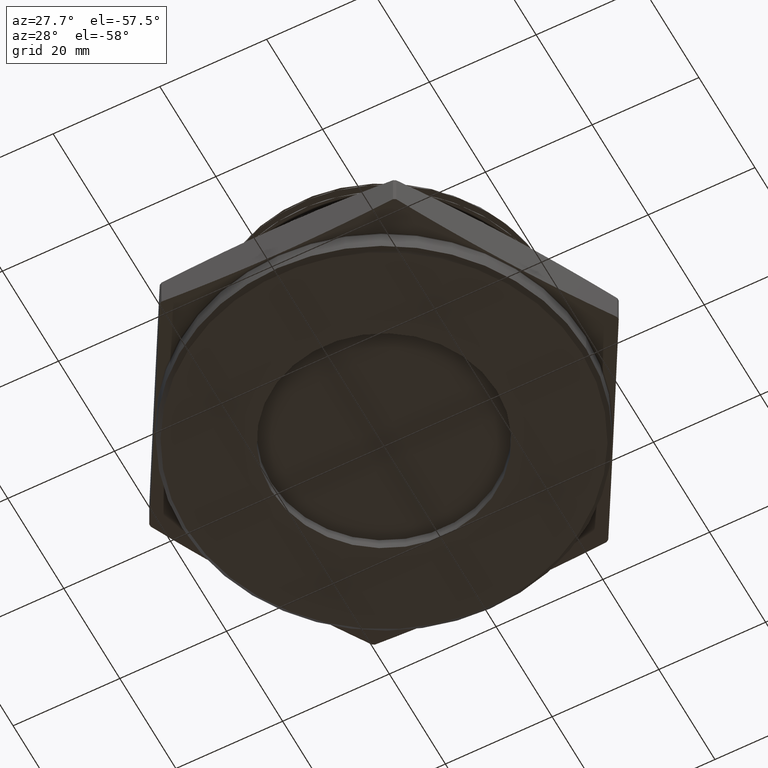
[diagram: clean part render]
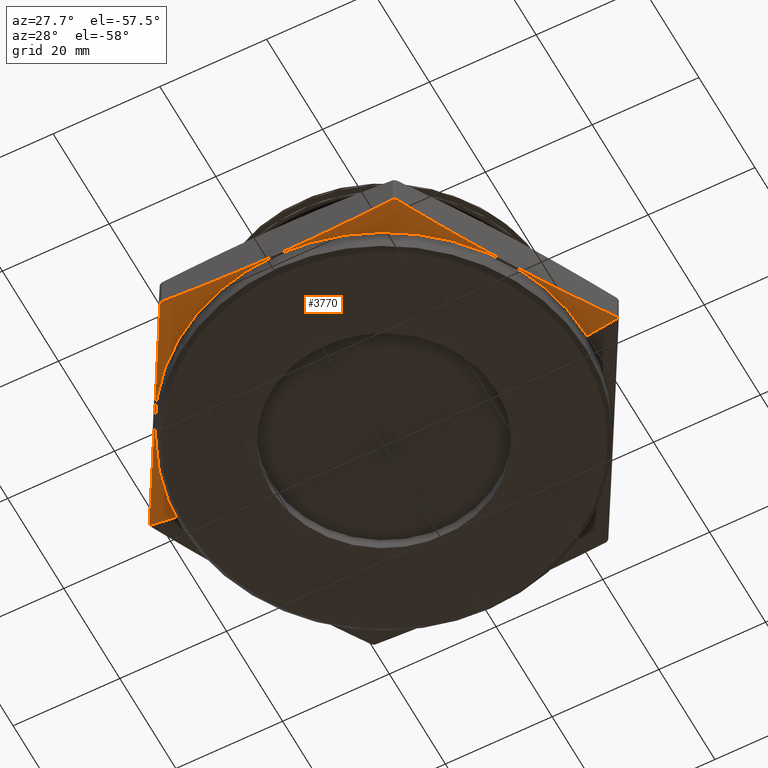
[diagram: same view with one face highlighted and labeled with its STEP entity id]
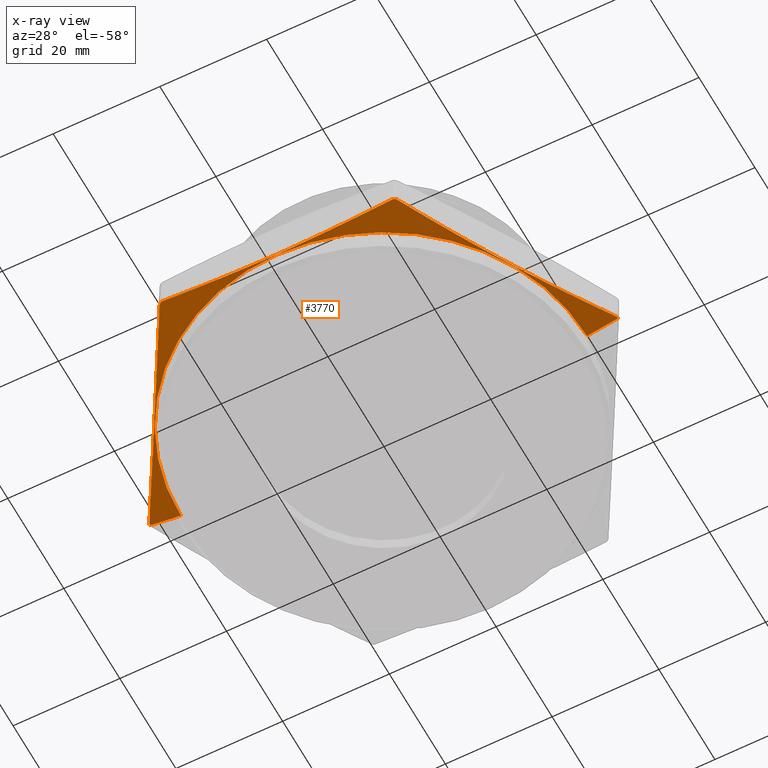
[diagram: x-ray of the same camera — body ghosted, the highlighted face saturated]
A machine part, auxiliary view. The second image highlights one B-rep face of the part: STEP entity #3770.
The next image is the same camera in x-ray: the body ghosted, the highlighted face saturated — about 0% of this face is hidden behind the body in this view.
In plain terms, the highlighted conical surface has half-angle 78 deg.
Its self-contained STEP definition (entity closure, byte-faithful):
#1333 = EDGE_CURVE ( 'NONE', #1615, #1603, #1724, .T. ) ;
#1347 = AXIS2_PLACEMENT_3D ( 'NONE', #7637, #7636, #7635 ) ;
#1393 = AXIS2_PLACEMENT_3D ( 'NONE', #3486, #3487, #3485 ) ;
#1416 = AXIS2_PLACEMENT_3D ( 'NONE', #3557, #3558, #3559 ) ;
#1427 = AXIS2_PLACEMENT_3D ( 'NONE', #2328, #2329, #2330 ) ;
#1429 = AXIS2_PLACEMENT_3D ( 'NONE', #2340, #2341, #2342 ) ;
#1432 = AXIS2_PLACEMENT_3D ( 'NONE', #2359, #2360, #2361 ) ;
#1487 = ORIENTED_EDGE ( 'NONE', *, *, #4038, .F. ) ;
#1488 = ORIENTED_EDGE ( 'NONE', *, *, #1333, .T. ) ;
#1489 = ORIENTED_EDGE ( 'NONE', *, *, #4010, .T. ) ;
#1490 = ORIENTED_EDGE ( 'NONE', *, *, #3978, .T. ) ;
#1491 = ORIENTED_EDGE ( 'NONE', *, *, #3986, .F. ) ;
#1492 = ORIENTED_EDGE ( 'NONE', *, *, #3971, .T. ) ;
#1493 = ORIENTED_EDGE ( 'NONE', *, *, #3987, .F. ) ;
#1494 = ORIENTED_EDGE ( 'NONE', *, *, #3966, .T. ) ;
#1495 = ORIENTED_EDGE ( 'NONE', *, *, #3988, .F. ) ;
#1496 = ORIENTED_EDGE ( 'NONE', *, *, #3898, .T. ) ;
#1518 = VERTEX_POINT ( 'NONE', #7069 ) ;
#1520 = VERTEX_POINT ( 'NONE', #7067 ) ;
#1522 = VERTEX_POINT ( 'NONE', #7066 ) ;
#1523 = VERTEX_POINT ( 'NONE', #7078 ) ;
#1532 = VERTEX_POINT ( 'NONE', #6974 ) ;
#1594 = VERTEX_POINT ( 'NONE', #7073 ) ;
#1596 = VERTEX_POINT ( 'NONE', #7072 ) ;
#1603 = VERTEX_POINT ( 'NONE', #7061 ) ;
#1615 = VERTEX_POINT ( 'NONE', #7046 ) ;
#1621 = VERTEX_POINT ( 'NONE', #7040 ) ;
#1690 = EDGE_LOOP ( 'NONE', ( #1487, #1488, #1489, #1490, #1491, #1492, #1493, #1494, #1495, #1496 ) ) ;
#1724 = CIRCLE ( 'NONE', #1347, 1.497920883091823100 ) ;
#1797 = B_SPLINE_CURVE_WITH_KNOTS ( 'NONE', 3,
 ( #2388, #2387, #2398, #2399, #2400, #2401, #2402, #2403, #2404 ),
 .UNSPECIFIED., .F., .F.,
 ( 4, 2, 1, 2, 4 ),
 ( 1.901761468408008900E-006, 0.01084722133919258100, 0.02169254091691675400, 0.03253786049464092700, 0.04338318007236510000 ),
 .UNSPECIFIED. ) ;
#1798 = B_SPLINE_CURVE_WITH_KNOTS ( 'NONE', 3,
 ( #2397, #2396, #2407, #2408, #2409, #2410, #2411, #2412, #2413, #2414 ),
 .UNSPECIFIED., .F., .F.,
 ( 4, 2, 2, 2, 4 ),
 ( 0.03681968275793052300, 0.04770835706127899600, 0.05859703136462747500, 0.06948570566797594700, 0.08037437997132441900 ),
 .UNSPECIFIED. ) ;
#1799 = B_SPLINE_CURVE_WITH_KNOTS ( 'NONE', 3,
 ( #2406, #2405, #2416, #2417, #2418, #2419, #2420, #2421, #2422 ),
 .UNSPECIFIED., .F., .F.,
 ( 4, 2, 1, 2, 4 ),
 ( 1.901761468371354200E-006, 0.01084722133919253900, 0.02169254091691670900, 0.03253786049464087900, 0.04338318007236504500 ),
 .UNSPECIFIED. ) ;
#2328 = CARTESIAN_POINT ( 'NONE',  ( 6.296788084049135800E-018, 0.0000000000000000000, 0.05017414803627076600 ) ) ;
#2329 = DIRECTION ( 'NONE',  ( -1.254986547952384500E-016, -0.0000000000000000000, -1.000000000000000000 ) ) ;
#2330 = DIRECTION ( 'NONE',  ( -1.000000000000000000, 0.0000000000000000000, 1.236496768050692600E-016 ) ) ;
#2340 = CARTESIAN_POINT ( 'NONE',  ( 6.296788084049135800E-018, 0.0000000000000000000, 0.05017414803627076600 ) ) ;
#2341 = DIRECTION ( 'NONE',  ( -1.254986547952384500E-016, -0.0000000000000000000, -1.000000000000000000 ) ) ;
#2342 = DIRECTION ( 'NONE',  ( -1.000000000000000000, 0.0000000000000000000, 1.236496768050692600E-016 ) ) ;
#2359 = CARTESIAN_POINT ( 'NONE',  ( 6.296788084049135800E-018, 0.0000000000000000000, 0.05017414803627076600 ) ) ;
#2360 = DIRECTION ( 'NONE',  ( -1.254986547952384500E-016, -0.0000000000000000000, -1.000000000000000000 ) ) ;
#2361 = DIRECTION ( 'NONE',  ( -1.000000000000000000, 0.0000000000000000000, 1.236496768050692600E-016 ) ) ;
#2387 = CARTESIAN_POINT ( 'NONE',  ( 0.9432205342290142000, -1.366294111973088000, 0.03520672766472290900 ) ) ;
#2388 = CARTESIAN_POINT ( 'NONE',  ( 0.8720570199394853700, -1.489552934367705000, 0.05017414803627098100 ) ) ;
#2396 = CARTESIAN_POINT ( 'NONE',  ( -0.7117519576831441400, -1.500000000000000200, 0.03521901216228433300 ) ) ;
#2397 = CARTESIAN_POINT ( 'NONE',  ( -0.8539621714743442800, -1.499999999999999600, 0.05017414803627098100 ) ) ;
#2398 = CARTESIAN_POINT ( 'NONE',  ( 1.014384048518542900, -1.243035289578470200, 0.02307374582524318900 ) ) ;
#2399 = CARTESIAN_POINT ( 'NONE',  ( 1.156711077097600300, -0.9965176447892351000, 0.006508769680813815200 ) ) ;
#2400 = CARTESIAN_POINT ( 'NONE',  ( 1.299038105676657800, -0.7499999999999996700, -0.002257638447414727400 ) ) ;
#2401 = CARTESIAN_POINT ( 'NONE',  ( 1.441365134255715000, -0.5034823552107650100, 0.006508769680813745800 ) ) ;
#2402 = CARTESIAN_POINT ( 'NONE',  ( 1.583692162834772200, -0.2569647104215300200, 0.02307374582524308200 ) ) ;
#2403 = CARTESIAN_POINT ( 'NONE',  ( 1.654855677124301000, -0.1337058880269123800, 0.03520672766472282600 ) ) ;
#2404 = CARTESIAN_POINT ( 'NONE',  ( 1.726019191413829900, -0.01044706563229453500, 0.05017414803627055100 ) ) ;
#2405 = CARTESIAN_POINT ( 'NONE',  ( -1.654855677124301000, -0.1337058880269130500, 0.03520672766472325600 ) ) ;
#2406 = CARTESIAN_POINT ( 'NONE',  ( -1.726019191413830100, -0.01044706563229562700, 0.05017414803627098100 ) ) ;
#2407 = CARTESIAN_POINT ( 'NONE',  ( -0.5689969641707457400, -1.499999999999999800, 0.02304618993916582000 ) ) ;
#2408 = CARTESIAN_POINT ( 'NONE',  ( -0.2839118229967513300, -1.500000000000000200, 0.006475060571191032300 ) ) ;
#2409 = CARTESIAN_POINT ( 'NONE',  ( -0.1414571199697156900, -1.499999999999999600, 0.002107483262599360500 ) ) ;
#2410 = CARTESIAN_POINT ( 'NONE',  ( 0.1432555716947810100, -1.499999999999999800, 0.002143762553960344600 ) ) ;
#2411 = CARTESIAN_POINT ( 'NONE',  ( 0.2855135918449003300, -1.499999999999999600, 0.006546214014220487500 ) ) ;
#2412 = CARTESIAN_POINT ( 'NONE',  ( 0.5698554412792498100, -1.499999999999999800, 0.02311823387482017700 ) ) ;
#2413 = CARTESIAN_POINT ( 'NONE',  ( 0.7119403689423424700, -1.499999999999999600, 0.03523882590073779800 ) ) ;
#2414 = CARTESIAN_POINT ( 'NONE',  ( 0.8539621714743447200, -1.499999999999999600, 0.05017414803627065500 ) ) ;
#2416 = CARTESIAN_POINT ( 'NONE',  ( -1.583692162834772900, -0.2569647104215305200, 0.02307374582524356400 ) ) ;
#2417 = CARTESIAN_POINT ( 'NONE',  ( -1.441365134255714800, -0.5034823552107651200, 0.006508769680814197700 ) ) ;
#2418 = CARTESIAN_POINT ( 'NONE',  ( -1.299038105676657100, -0.7500000000000001100, -0.002257638447414314100 ) ) ;
#2419 = CARTESIAN_POINT ( 'NONE',  ( -1.156711077097600300, -0.9965176447892352100, 0.006508769680814157800 ) ) ;
#2420 = CARTESIAN_POINT ( 'NONE',  ( -1.014384048518542700, -1.243035289578470200, 0.02307374582524349800 ) ) ;
#2421 = CARTESIAN_POINT ( 'NONE',  ( -0.9432205342290142000, -1.366294111973087800, 0.03520672766472319300 ) ) ;
#2422 = CARTESIAN_POINT ( 'NONE',  ( -0.8720570199394855900, -1.489552934367704800, 0.05017414803627087700 ) ) ;
#3485 = DIRECTION ( 'NONE',  ( 1.000000000000000000, 0.0000000000000000000, -1.236496768050692600E-016 ) ) ;
#3486 = CARTESIAN_POINT ( 'NONE',  ( 6.296788084049135800E-018, 0.0000000000000000000, 0.05017414803627076600 ) ) ;
#3487 = DIRECTION ( 'NONE',  ( 1.254986547952384500E-016, 0.0000000000000000000, 1.000000000000000000 ) ) ;
#3557 = CARTESIAN_POINT ( 'NONE',  ( 6.296788084049135800E-018, 0.0000000000000000000, 0.05017414803627076600 ) ) ;
#3558 = DIRECTION ( 'NONE',  ( -1.254986547952384500E-016, -0.0000000000000000000, -1.000000000000000000 ) ) ;
#3559 = DIRECTION ( 'NONE',  ( -1.000000000000000000, 0.0000000000000000000, 1.236496768050692600E-016 ) ) ;
#3770 = ADVANCED_FACE ( 'NONE', ( #7705 ), #7712, .T. ) ;
#3898 = EDGE_CURVE ( 'NONE', #1596, #1594, #7741, .T. ) ;
#3966 = EDGE_CURVE ( 'NONE', #1520, #1518, #7793, .T. ) ;
#3971 = EDGE_CURVE ( 'NONE', #1523, #1532, #7800, .T. ) ;
#3978 = EDGE_CURVE ( 'NONE', #1621, #1522, #7811, .T. ) ;
#3986 = EDGE_CURVE ( 'NONE', #1523, #1522, #1797, .T. ) ;
#3987 = EDGE_CURVE ( 'NONE', #1520, #1532, #1798, .T. ) ;
#3988 = EDGE_CURVE ( 'NONE', #1596, #1518, #1799, .T. ) ;
#4010 = EDGE_CURVE ( 'NONE', #1603, #1621, #7847, .T. ) ;
#4038 = EDGE_CURVE ( 'NONE', #1615, #1594, #7878, .T. ) ;
#6974 = CARTESIAN_POINT ( 'NONE',  ( 0.8539621714743447200, -1.499999999999999600, 0.05017414803627065500 ) ) ;
#7040 = CARTESIAN_POINT ( 'NONE',  ( 1.726050807568878100, 0.0000000000000000000, 0.05017414803627055100 ) ) ;
#7046 = CARTESIAN_POINT ( 'NONE',  ( -1.497920883091819600, 1.834424014854373500E-016, 0.001683635675387105800 ) ) ;
#7061 = CARTESIAN_POINT ( 'NONE',  ( 1.497920883091819600, 0.0000000000000000000, 0.001683635675386730200 ) ) ;
#7066 = CARTESIAN_POINT ( 'NONE',  ( 1.726019191413829900, -0.01044706563229453500, 0.05017414803627055100 ) ) ;
#7067 = CARTESIAN_POINT ( 'NONE',  ( -0.8539621714743442800, -1.499999999999999600, 0.05017414803627098100 ) ) ;
#7069 = CARTESIAN_POINT ( 'NONE',  ( -0.8720570199394855900, -1.489552934367704800, 0.05017414803627087700 ) ) ;
#7072 = CARTESIAN_POINT ( 'NONE',  ( -1.726019191413830100, -0.01044706563229562700, 0.05017414803627098100 ) ) ;
#7073 = CARTESIAN_POINT ( 'NONE',  ( -1.726050807568878100, 0.0000000000000000000, 0.05017414803627098100 ) ) ;
#7078 = CARTESIAN_POINT ( 'NONE',  ( 0.8720570199394853700, -1.489552934367705000, 0.05017414803627098100 ) ) ;
#7431 = CARTESIAN_POINT ( 'NONE',  ( 1.726050807568878100, 0.0000000000000000000, 0.05017414803627055100 ) ) ;
#7432 = DIRECTION ( 'NONE',  ( 0.9781476007338069100, 0.0000000000000000000, 0.2079116908177528500 ) ) ;
#7526 = CARTESIAN_POINT ( 'NONE',  ( -1.726050807568878100, 2.113802596654930700E-016, 0.05017414803627098100 ) ) ;
#7535 = DIRECTION ( 'NONE',  ( -0.9781476007338069100, 1.197885328332319900E-016, 0.2079116908177530700 ) ) ;
#7635 = DIRECTION ( 'NONE',  ( 1.000000000000000000, 0.0000000000000000000, -1.255615925500919300E-016 ) ) ;
#7636 = DIRECTION ( 'NONE',  ( 1.254986547952384500E-016, 0.0000000000000000000, 1.000000000000000000 ) ) ;
#7637 = CARTESIAN_POINT ( 'NONE',  ( 7.327283493011152200E-018, 0.0000000000000000000, 0.001683635675386918000 ) ) ;
#7705 = FACE_OUTER_BOUND ( 'NONE', #1690, .T. ) ;
#7712 = CONICAL_SURFACE ( 'NONE', #1393, 1.726050807568878100, 1.361356816555583600 ) ;
#7741 = CIRCLE ( 'NONE', #1416, 1.726050807568878100 ) ;
#7793 = CIRCLE ( 'NONE', #1427, 1.726050807568878100 ) ;
#7800 = CIRCLE ( 'NONE', #1429, 1.726050807568878100 ) ;
#7811 = CIRCLE ( 'NONE', #1432, 1.726050807568878100 ) ;
#7847 = LINE ( 'NONE', #7431, #7849 ) ;
#7849 = VECTOR ( 'NONE', #7432, 39.37007874015748100 ) ;
#7878 = LINE ( 'NONE', #7526, #7881 ) ;
#7881 = VECTOR ( 'NONE', #7535, 39.37007874015748100 ) ;